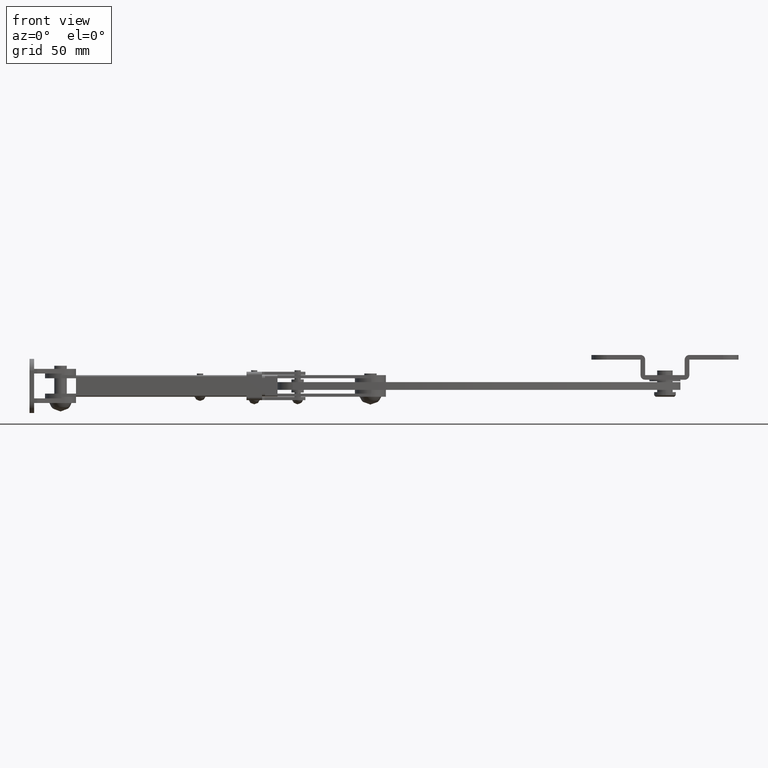
[diagram: clean part render]
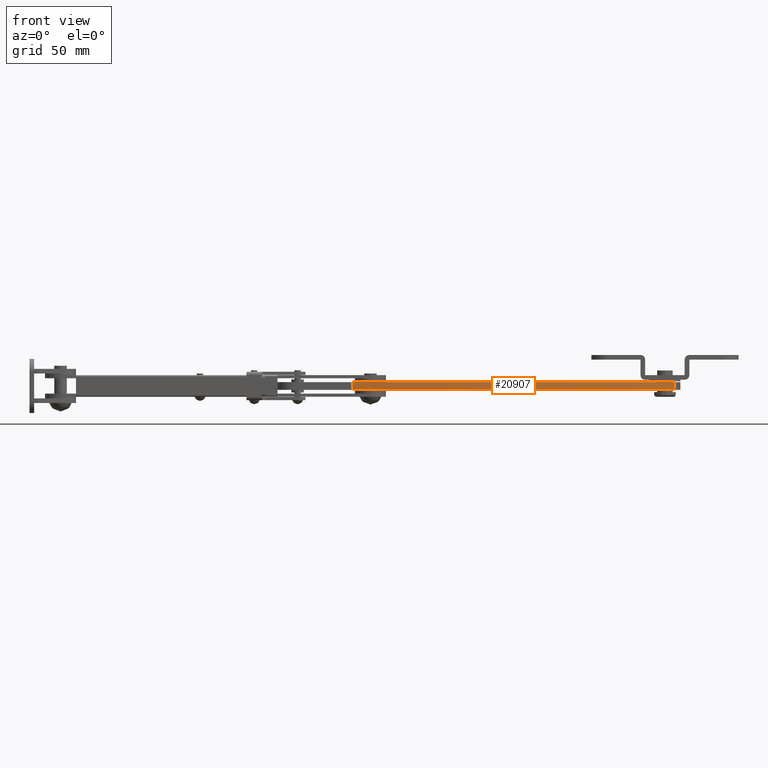
[diagram: same view with one face highlighted and labeled with its STEP entity id]
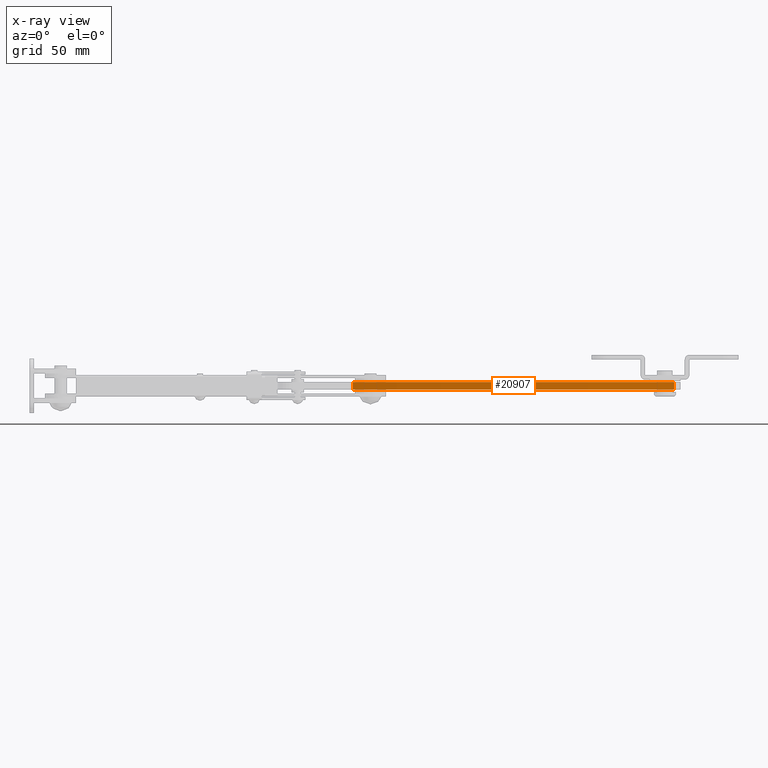
[diagram: x-ray of the same camera — body ghosted, the highlighted face saturated]
A machine part, front view. The second image highlights one B-rep face of the part: STEP entity #20907.
The next image is the same camera in x-ray: the body ghosted, the highlighted face saturated — about 0% of this face is hidden behind the body in this view.
In plain terms, the highlighted face is a freeform B-spline surface patch.
Its self-contained STEP definition (entity closure, byte-faithful):
#20812=CARTESIAN_POINT('',(188.635328099598010,-9.800662946603380,2.499999999999945));
#20813=VERTEX_POINT('',#20812);
#20830=CARTESIAN_POINT('',(188.635328099598010,-9.800662946603380,-2.499999999999945));
#20831=VERTEX_POINT('',#20830);
#20847=CARTESIAN_POINT('',(188.635328099598010,-9.800662946603380,-2.499999999999945));
#20848=CARTESIAN_POINT('',(188.635328099598010,-9.800662946603380,2.499999999999945));
#20849=QUASI_UNIFORM_CURVE('',1,(#20847,#20848),.UNSPECIFIED.,.F.,.U.);
#20850=EDGE_CURVE('',#20831,#20813,#20849,.T.);
#20855=CARTESIAN_POINT('',(404.528619595113870,60.656883836837778,-2.624999999999943));
#20856=CARTESIAN_POINT('',(404.528619595113870,60.656883836837778,2.628124999999942));
#20857=CARTESIAN_POINT('',(304.597066260789800,-17.804064325508755,-2.624999999999943));
#20858=CARTESIAN_POINT('',(304.597066260789800,-17.804064325508755,2.628124999999943));
#20859=CARTESIAN_POINT('',(177.832552326049780,-9.248730010917340,-2.624999999999943));
#20860=CARTESIAN_POINT('',(177.832552326049780,-9.248730010917340,2.628124999999942));
#20868=(BOUNDED_SURFACE()B_SPLINE_SURFACE(1,2,((#20855,#20857,#20859),(#20856,#20858,#20860)),.UNSPECIFIED.,.F.,.F.,.U.)B_SPLINE_SURFACE_WITH_KNOTS((2,2),(3,3),(0.0,5.253124999999885),(3.783834813261032,249.164347292756990),.UNSPECIFIED.)GEOMETRIC_REPRESENTATION_ITEM()RATIONAL_B_SPLINE_SURFACE(((0.997890318151457,0.930504961883364,0.995510254985529),(0.997890318151457,0.930504961883364,0.995510254985529)))REPRESENTATION_ITEM('')SURFACE());
#20869=CARTESIAN_POINT('',(395.932670892218030,54.131489166774003,2.499999999999945));
#20870=VERTEX_POINT('',#20869);
#20871=CARTESIAN_POINT('',(395.932670892218080,54.131489166774067,2.499999999999945));
#20872=CARTESIAN_POINT('',(303.371207799041030,-13.784398436252850,2.499999999999945));
#20873=CARTESIAN_POINT('',(188.635328099598010,-9.800662946603367,2.499999999999945));
#20881=(BOUNDED_CURVE()B_SPLINE_CURVE(2,(#20871,#20872,#20873),.UNSPECIFIED.,.F.,.U.)CURVE()GEOMETRIC_REPRESENTATION_ITEM()QUASI_UNIFORM_CURVE()RATIONAL_B_SPLINE_CURVE((1.0,0.944784642176282,1.0))REPRESENTATION_ITEM(''));
#20882=EDGE_CURVE('',#20870,#20813,#20881,.T.);
#20883=ORIENTED_EDGE('',*,*,#20882,.T.);
#20884=ORIENTED_EDGE('',*,*,#20850,.F.);
#20885=CARTESIAN_POINT('',(395.932670892218030,54.131489166774003,-2.499999999999945));
#20886=VERTEX_POINT('',#20885);
#20887=CARTESIAN_POINT('',(395.932670892218080,54.131489166774067,-2.499999999999945));
#20888=CARTESIAN_POINT('',(303.371207799041030,-13.784398436252850,-2.499999999999945));
#20889=CARTESIAN_POINT('',(188.635328099598010,-9.800662946603367,-2.499999999999945));
#20897=(BOUNDED_CURVE()B_SPLINE_CURVE(2,(#20887,#20888,#20889),.UNSPECIFIED.,.F.,.U.)CURVE()GEOMETRIC_REPRESENTATION_ITEM()QUASI_UNIFORM_CURVE()RATIONAL_B_SPLINE_CURVE((1.0,0.944784642176282,1.0))REPRESENTATION_ITEM(''));
#20898=EDGE_CURVE('',#20886,#20831,#20897,.T.);
#20899=ORIENTED_EDGE('',*,*,#20898,.F.);
#20900=CARTESIAN_POINT('',(395.932670892218030,54.131489166774003,-2.499999999999945));
#20901=CARTESIAN_POINT('',(395.932670892218030,54.131489166774003,2.499999999999945));
#20902=QUASI_UNIFORM_CURVE('',1,(#20900,#20901),.UNSPECIFIED.,.F.,.U.);
#20903=EDGE_CURVE('',#20886,#20870,#20902,.T.);
#20904=ORIENTED_EDGE('',*,*,#20903,.T.);
#20905=EDGE_LOOP('',(#20883,#20884,#20899,#20904));
#20906=FACE_OUTER_BOUND('',#20905,.T.);
#20907=ADVANCED_FACE('',(#20906),#20868,.T.);